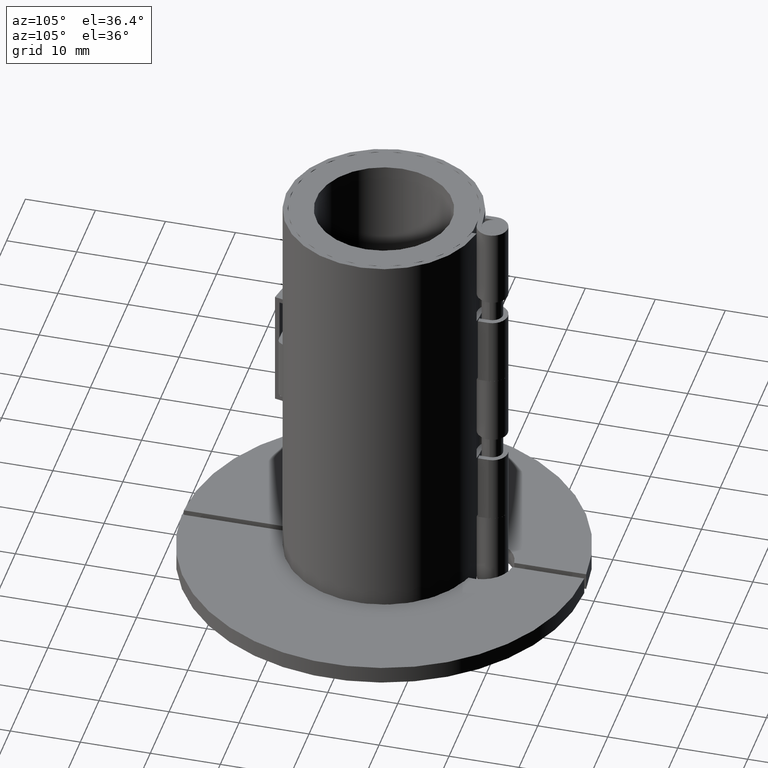
[diagram: clean part render]
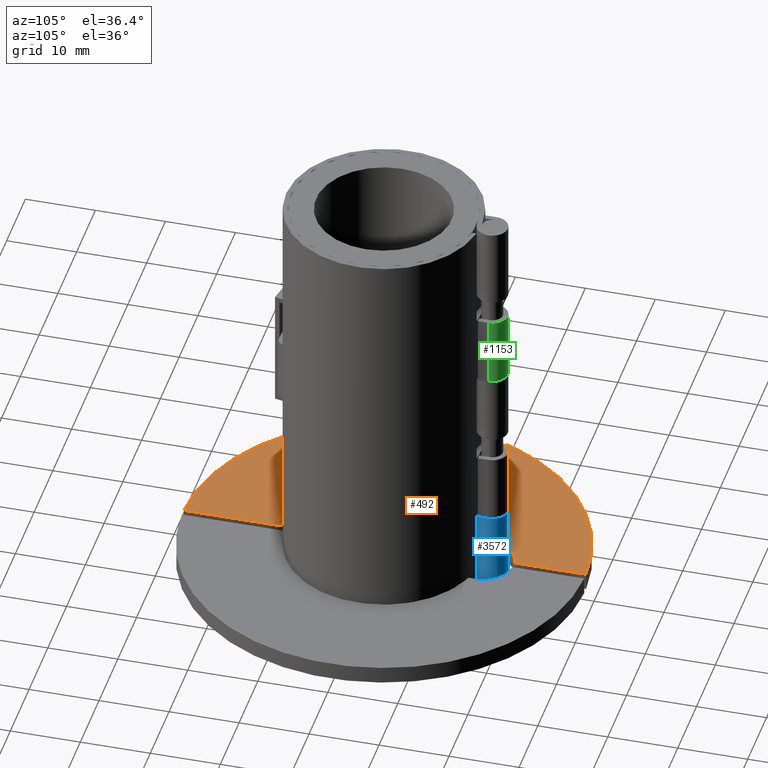
[diagram: same view with three faces highlighted in distinct colors, each labeled with its STEP entity id]
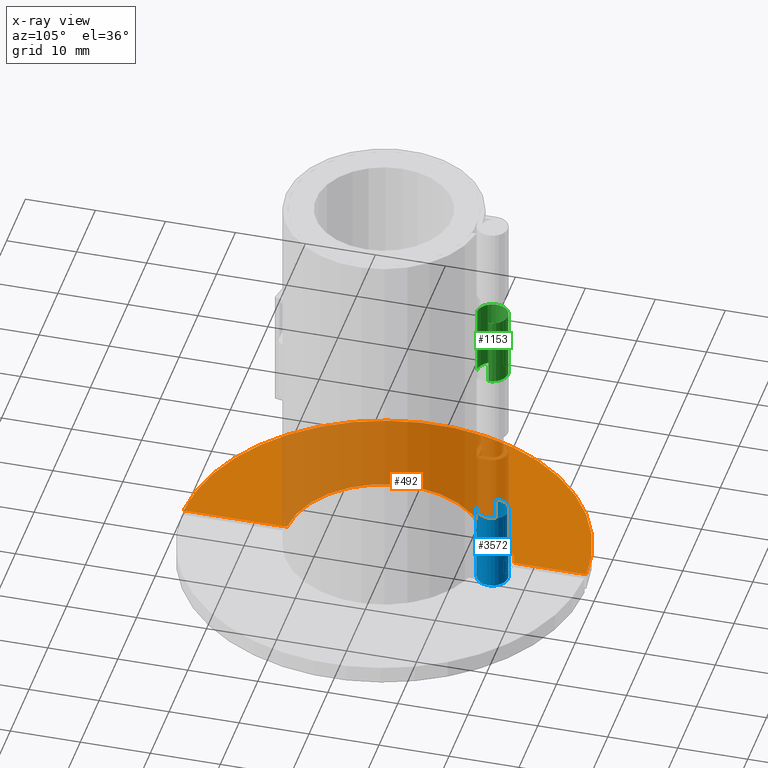
[diagram: x-ray of the same camera — body ghosted, the three highlighted faces saturated]
A machine part, auxiliary view with three faces highlighted in distinct colors.
The next image is the same camera in x-ray (body ghosted, the three faces saturated) — at least one of them is partly hidden behind the body in this view.
Their STEP definitions:

[orange] entity #492 — the highlighted planar face has unit normal (0, 0, -1).
#322=CARTESIAN_POINT('',(-4.441504373175687,13.276785714285715,2.5));
#323=VERTEX_POINT('',#322);
#330=CARTESIAN_POINT('',(-0.500000000000002,-13.991068579633223,2.5));
#331=VERTEX_POINT('',#330);
#332=CARTESIAN_POINT('',(0.0,0.0,2.5));
#333=DIRECTION('',(1.854058E-033,5.188051E-032,-1.0));
#334=DIRECTION('',(-0.035714285714286,-0.999362041402373,-5.191363E-032));
#335=AXIS2_PLACEMENT_3D('',#332,#333,#334);
#336=CIRCLE('',#335,13.999999999999998);
#337=EDGE_CURVE('',#331,#323,#336,.T.);
#362=CARTESIAN_POINT('',(-0.499999999999998,18.47213595499958,2.5));
#363=VERTEX_POINT('',#362);
#370=CARTESIAN_POINT('',(1.714506E-015,14.000000000000002,2.5));
#371=DIRECTION('',(7.986633E-032,1.300471E-032,-1.0));
#372=DIRECTION('',(-0.98700097181682,-0.160714285714286,-8.091818E-032));
#373=AXIS2_PLACEMENT_3D('',#370,#371,#372);
#374=CIRCLE('',#373,4.499999999999999);
#375=EDGE_CURVE('',#323,#363,#374,.T.);
#394=CARTESIAN_POINT('',(-0.499999999999997,28.745651845105201,2.5));
#395=VERTEX_POINT('',#394);
#402=CARTESIAN_POINT('',(-0.499999999999998,18.47213595499958,2.5));
#403=DIRECTION('',(0.0,1.0,0.0));
#404=VECTOR('',#403,10.273515890105621);
#405=LINE('',#402,#404);
#406=EDGE_CURVE('',#363,#395,#405,.T.);
#426=CARTESIAN_POINT('',(-0.500000000000004,-28.745651845105201,2.5));
#427=VERTEX_POINT('',#426);
#434=CARTESIAN_POINT('',(0.0,0.0,2.5));
#435=DIRECTION('',(-8.796963E-034,-5.057489E-032,1.0));
#436=DIRECTION('',(0.017391304347826,0.999848759829746,5.058254E-032));
#437=AXIS2_PLACEMENT_3D('',#434,#435,#436);
#438=CIRCLE('',#437,28.75);
#439=EDGE_CURVE('',#395,#427,#438,.T.);
#457=CARTESIAN_POINT('',(-0.500000000000004,-28.745651845105201,2.5));
#458=DIRECTION('',(0.0,1.0,0.0));
#459=VECTOR('',#458,14.754583265471979);
#460=LINE('',#457,#459);
#461=EDGE_CURVE('',#427,#331,#460,.T.);
#480=CARTESIAN_POINT('',(-11.727389631247757,-0.027356424344548,2.5));
#481=DIRECTION('',(0.0,0.0,-1.0));
#482=DIRECTION('',(-1.0,0.0,0.0));
#483=AXIS2_PLACEMENT_3D('',#480,#481,#482);
#484=PLANE('',#483);
#485=ORIENTED_EDGE('',*,*,#461,.T.);
#486=ORIENTED_EDGE('',*,*,#337,.T.);
#487=ORIENTED_EDGE('',*,*,#375,.T.);
#488=ORIENTED_EDGE('',*,*,#406,.T.);
#489=ORIENTED_EDGE('',*,*,#439,.T.);
#490=EDGE_LOOP('',(#485,#486,#487,#488,#489));
#491=FACE_OUTER_BOUND('',#490,.T.);
#492=ADVANCED_FACE('',(#491),#484,.F.);

[blue] entity #3572 — the highlighted cylindrical surface (edge-blend (fillet) strip) has radius 2.2 mm, axis along (0, -0, -1).
#3195=CARTESIAN_POINT('',(9.158785E-014,13.299999999999951,1.154632E-013));
#3196=VERTEX_POINT('',#3195);
#3204=CARTESIAN_POINT('',(9.158785E-014,13.299999999999949,11.500000000000119));
#3205=VERTEX_POINT('',#3204);
#3206=CARTESIAN_POINT('',(9.158785E-014,13.299999999999949,1.136868E-013));
#3207=DIRECTION('',(0.0,0.0,1.0));
#3208=VECTOR('',#3207,11.500000000000004);
#3209=LINE('',#3206,#3208);
#3210=EDGE_CURVE('',#3196,#3205,#3209,.T.);
#3298=CARTESIAN_POINT('',(-2.199999999999908,15.499999999999952,11.500000000000119));
#3299=VERTEX_POINT('',#3298);
#3300=CARTESIAN_POINT('',(9.361956E-014,15.499999999999952,11.500000000000119));
#3301=DIRECTION('',(0.0,0.0,-1.0));
#3302=DIRECTION('',(-1.0,0.0,0.0));
#3303=AXIS2_PLACEMENT_3D('',#3300,#3301,#3302);
#3304=CIRCLE('',#3303,2.200000000000003);
#3305=EDGE_CURVE('',#3299,#3205,#3304,.T.);
#3548=CARTESIAN_POINT('',(9.361956E-014,15.499999999999952,30.000000000000114));
#3549=DIRECTION('',(8.281969E-032,-6.409495E-031,-1.0));
#3550=DIRECTION('',(-1.0,0.0,0.0));
#3551=AXIS2_PLACEMENT_3D('',#3548,#3549,#3550);
#3552=CYLINDRICAL_SURFACE('',#3551,2.200000000000003);
#3553=ORIENTED_EDGE('',*,*,#3305,.T.);
#3554=ORIENTED_EDGE('',*,*,#3210,.F.);
#3555=CARTESIAN_POINT('',(-2.199999999999908,15.499999999999952,1.154632E-013));
#3556=VERTEX_POINT('',#3555);
#3557=CARTESIAN_POINT('',(9.361956E-014,15.499999999999952,1.154632E-013));
#3558=DIRECTION('',(0.0,0.0,-1.0));
#3559=DIRECTION('',(-1.0,0.0,0.0));
#3560=AXIS2_PLACEMENT_3D('',#3557,#3558,#3559);
#3561=CIRCLE('',#3560,2.200000000000002);
#3562=EDGE_CURVE('',#3556,#3196,#3561,.T.);
#3563=ORIENTED_EDGE('',*,*,#3562,.F.);
#3564=CARTESIAN_POINT('',(-2.199999999999908,15.49999999999995,1.136868E-013));
#3565=DIRECTION('',(0.0,0.0,1.0));
#3566=VECTOR('',#3565,11.500000000000004);
#3567=LINE('',#3564,#3566);
#3568=EDGE_CURVE('',#3556,#3299,#3567,.T.);
#3569=ORIENTED_EDGE('',*,*,#3568,.T.);
#3570=EDGE_LOOP('',(#3553,#3554,#3563,#3569));
#3571=FACE_OUTER_BOUND('',#3570,.T.);
#3572=ADVANCED_FACE('',(#3571),#3552,.T.);

[green] entity #1153 — the highlighted cylindrical surface (edge-blend (fillet) strip) has radius 2.2 mm, axis along (0, 0, 1).
#535=CARTESIAN_POINT('',(7.632659E-034,13.299999999999999,45.0));
#536=VERTEX_POINT('',#535);
#586=CARTESIAN_POINT('',(2.2,15.5,45.0));
#587=VERTEX_POINT('',#586);
#594=CARTESIAN_POINT('',(-1.665335E-015,15.5,45.0));
#595=DIRECTION('',(0.0,0.0,-1.0));
#596=DIRECTION('',(1.0,0.0,0.0));
#597=AXIS2_PLACEMENT_3D('',#594,#595,#596);
#598=CIRCLE('',#597,2.200000000000003);
#599=EDGE_CURVE('',#536,#587,#598,.T.);
#787=CARTESIAN_POINT('',(2.544220E-034,13.299999999999999,35.0));
#788=VERTEX_POINT('',#787);
#796=CARTESIAN_POINT('',(2.2,15.5,35.0));
#797=VERTEX_POINT('',#796);
#798=CARTESIAN_POINT('',(-1.665335E-015,15.5,35.0));
#799=DIRECTION('',(0.0,0.0,1.0));
#800=DIRECTION('',(1.0,0.0,0.0));
#801=AXIS2_PLACEMENT_3D('',#798,#799,#800);
#802=CIRCLE('',#801,2.200000000000003);
#803=EDGE_CURVE('',#797,#788,#802,.T.);
#923=CARTESIAN_POINT('',(7.632659E-034,13.299999999999999,45.0));
#924=DIRECTION('',(0.0,0.0,-1.0));
#925=VECTOR('',#924,10.0);
#926=LINE('',#923,#925);
#927=EDGE_CURVE('',#536,#788,#926,.T.);
#1137=CARTESIAN_POINT('',(-1.665335E-015,15.5,30.0));
#1138=DIRECTION('',(0.0,0.0,1.0));
#1139=DIRECTION('',(1.0,0.0,0.0));
#1140=AXIS2_PLACEMENT_3D('',#1137,#1138,#1139);
#1141=CYLINDRICAL_SURFACE('',#1140,2.200000000000003);
#1142=ORIENTED_EDGE('',*,*,#599,.T.);
#1143=CARTESIAN_POINT('',(2.2,15.499999999999998,45.0));
#1144=DIRECTION('',(0.0,0.0,-1.0));
#1145=VECTOR('',#1144,10.0);
#1146=LINE('',#1143,#1145);
#1147=EDGE_CURVE('',#587,#797,#1146,.T.);
#1148=ORIENTED_EDGE('',*,*,#1147,.T.);
#1149=ORIENTED_EDGE('',*,*,#803,.T.);
#1150=ORIENTED_EDGE('',*,*,#927,.F.);
#1151=EDGE_LOOP('',(#1142,#1148,#1149,#1150));
#1152=FACE_OUTER_BOUND('',#1151,.T.);
#1153=ADVANCED_FACE('',(#1152),#1141,.T.);